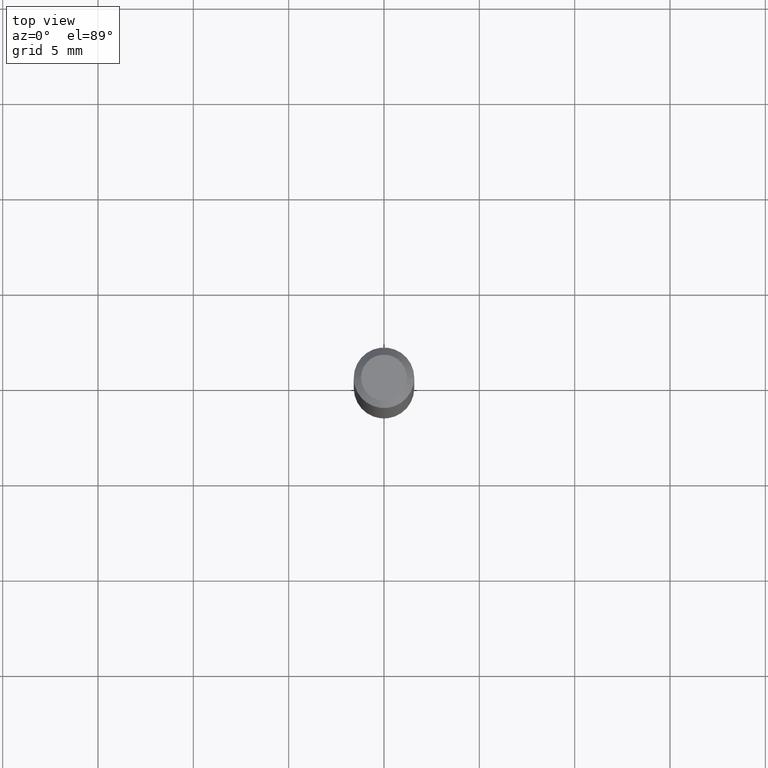
[diagram: clean part render]
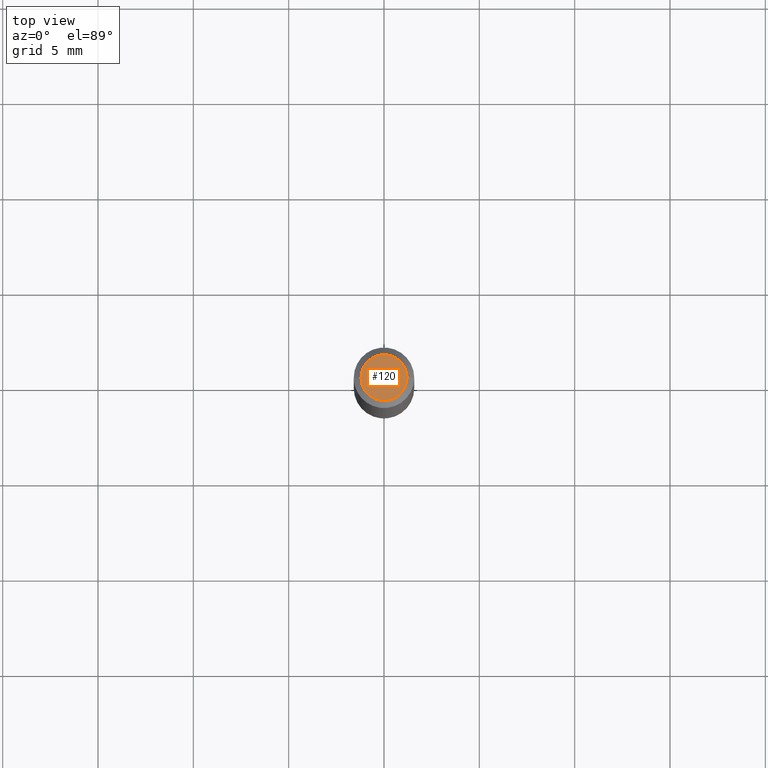
[diagram: same view with one face highlighted and labeled with its STEP entity id]
A machine part, top view. The second image highlights one B-rep face of the part: STEP entity #120.
In plain terms, the highlighted planar face has unit normal (0, -0, -1).
Its self-contained STEP definition (entity closure, byte-faithful):
#14 = EDGE_CURVE ( 'NONE', #284, #464, #133, .T. ) ;
#19 = AXIS2_PLACEMENT_3D ( 'NONE', #290, #325, #78 ) ;
#78 = DIRECTION ( 'NONE',  ( 1.000000000000000000, -6.982962677686267499E-15, 4.852736867747366768E-29 ) ) ;
#79 = ORIENTED_EDGE ( 'NONE', *, *, #363, .T. ) ;
#116 = CARTESIAN_POINT ( 'NONE',  ( 5.895992206697910099E-45, -8.417914271318620386E-31, -2.410986470890828574E-16 ) ) ;
#120 = ADVANCED_FACE ( 'NONE', ( #442 ), #443, .F. ) ;
#123 = DIRECTION ( 'NONE',  ( -1.000000000000000000, 6.982962677686265922E-15, -4.876176775795935793E-29 ) ) ;
#133 = CIRCLE ( 'NONE', #369, 0.04749999999999999362 ) ;
#148 = AXIS2_PLACEMENT_3D ( 'NONE', #301, #447, #123 ) ;
#154 = CARTESIAN_POINT ( 'NONE',  ( -0.04749999999999999362, 3.578768372314206562E-16, -2.410986470890852239E-16 ) ) ;
#173 = DIRECTION ( 'NONE',  ( 1.000000000000000000, -6.982962677686267499E-15, 4.852736867747366768E-29 ) ) ;
#284 = VERTEX_POINT ( 'NONE', #154 ) ;
#288 = EDGE_LOOP ( 'NONE', ( #357, #79 ) ) ;
#290 = CARTESIAN_POINT ( 'NONE',  ( 5.895992206697910099E-45, -8.417914271318620386E-31, -2.410986470890828574E-16 ) ) ;
#301 = CARTESIAN_POINT ( 'NONE',  ( 3.316907271900976096E-16, 0.04749999999999999362, -2.863946871395908498E-16 ) ) ;
#306 = CARTESIAN_POINT ( 'NONE',  ( 0.04749999999999999362, -4.035134999187582567E-16, -2.410986470890802443E-16 ) ) ;
#325 = DIRECTION ( 'NONE',  ( -2.445468806185136597E-29, 3.491481338843145583E-15, 1.000000000000000000 ) ) ;
#357 = ORIENTED_EDGE ( 'NONE', *, *, #14, .T. ) ;
#363 = EDGE_CURVE ( 'NONE', #464, #284, #389, .T. ) ;
#369 = AXIS2_PLACEMENT_3D ( 'NONE', #116, #374, #173 ) ;
#374 = DIRECTION ( 'NONE',  ( -2.445468806185136597E-29, 3.491481338843145583E-15, 1.000000000000000000 ) ) ;
#389 = CIRCLE ( 'NONE', #19, 0.04749999999999999362 ) ;
#442 = FACE_OUTER_BOUND ( 'NONE', #288, .T. ) ;
#443 = PLANE ( 'NONE',  #148 ) ;
#447 = DIRECTION ( 'NONE',  ( 2.438088387897960049E-29, -3.491481338843145188E-15, -1.000000000000000000 ) ) ;
#464 = VERTEX_POINT ( 'NONE', #306 ) ;